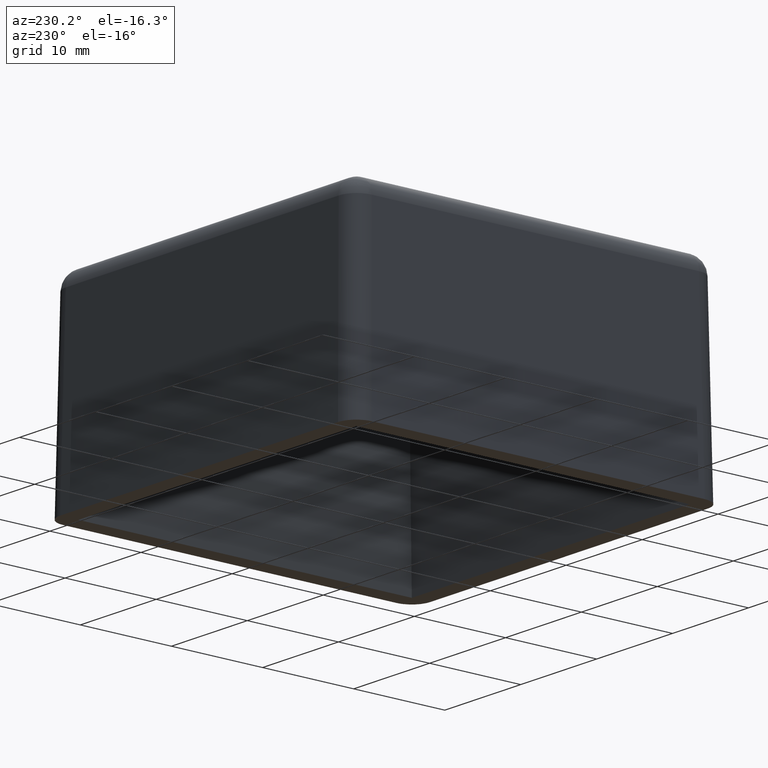
[diagram: clean part render]
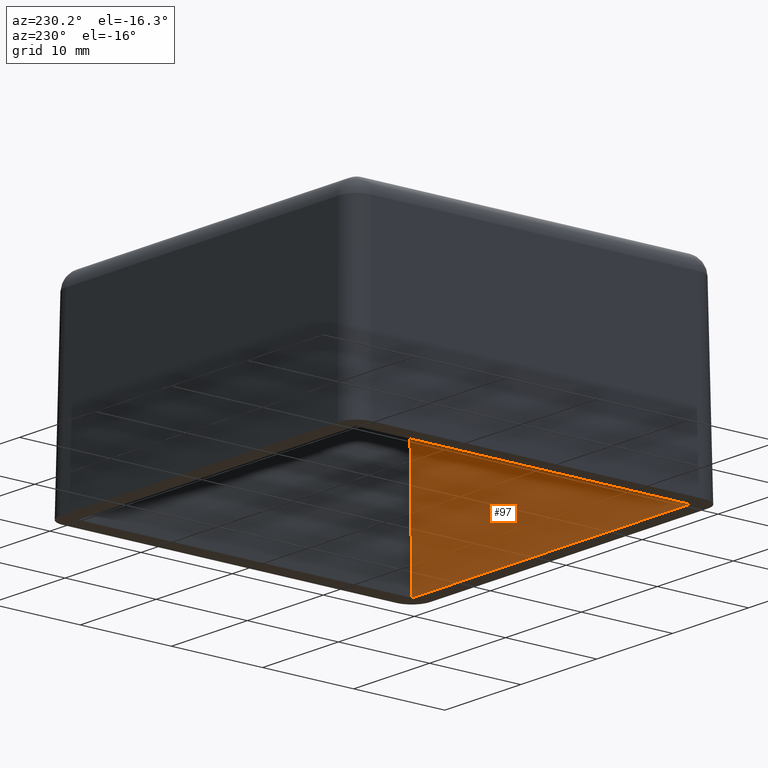
[diagram: same view with one face highlighted and labeled with its STEP entity id]
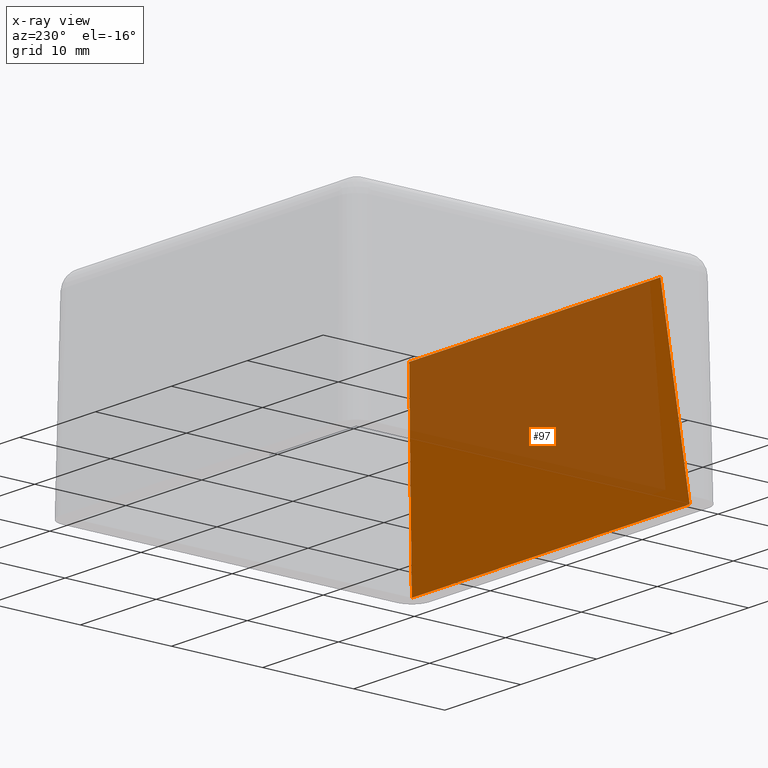
[diagram: x-ray of the same camera — body ghosted, the highlighted face saturated]
A machine part, auxiliary view. The second image highlights one B-rep face of the part: STEP entity #97.
The next image is the same camera in x-ray: the body ghosted, the highlighted face saturated — about 58% of this face is hidden behind the body in this view.
In plain terms, the highlighted planar face has unit normal (0, -0.9962, 0.0872).
Its self-contained STEP definition (entity closure, byte-faithful):
#97 = ADVANCED_FACE( '', ( #215 ), #216, .F. );
#215 = FACE_OUTER_BOUND( '', #400, .T. );
#216 = PLANE( '', #401 );
#400 = EDGE_LOOP( '', ( #769, #770, #771, #772 ) );
#401 = AXIS2_PLACEMENT_3D( '', #773, #774, #775 );
#769 = ORIENTED_EDGE( '', *, *, #1366, .F. );
#770 = ORIENTED_EDGE( '', *, *, #1377, .F. );
#771 = ORIENTED_EDGE( '', *, *, #1374, .T. );
#772 = ORIENTED_EDGE( '', *, *, #1378, .T. );
#773 = CARTESIAN_POINT( '', ( -18.3000000000000, -18.3000000000000, 0.000000000000000 ) );
#774 = DIRECTION( '', ( 0.000000000000000, -0.996194698091746, 0.0871557427476582 ) );
#775 = DIRECTION( '', ( 0.000000000000000, -0.0871557427476582, -0.996194698091746 ) );
#1366 = EDGE_CURVE( '', #1655, #1657, #1658, .F. );
#1374 = EDGE_CURVE( '', #1666, #1670, #1672, .F. );
#1377 = EDGE_CURVE( '', #1666, #1655, #1675, .T. );
#1378 = EDGE_CURVE( '', #1670, #1657, #1676, .T. );
#1655 = VERTEX_POINT( '', #2208 );
#1657 = VERTEX_POINT( '', #2211 );
#1658 = LINE( '', #2212, #2213 );
#1666 = VERTEX_POINT( '', #2223 );
#1670 = VERTEX_POINT( '', #2229 );
#1672 = LINE( '', #2232, #2233 );
#1675 = LINE( '', #2238, #2239 );
#1676 = LINE( '', #2240, #2241 );
#2208 = CARTESIAN_POINT( '', ( -18.3000000000000, -18.3000000000000, 0.000000000000000 ) );
#2211 = CARTESIAN_POINT( '', ( 18.3000000000000, -18.3000000000000, 0.000000000000000 ) );
#2212 = CARTESIAN_POINT( '', ( -18.3000000000000, -18.3000000000000, 0.000000000000000 ) );
#2213 = VECTOR( '', #2599, 1000.00000000000 );
#2223 = CARTESIAN_POINT( '', ( -16.5502267294815, -16.5502267294815, 20.0000000000000 ) );
#2229 = CARTESIAN_POINT( '', ( 16.5502267294815, -16.5502267294815, 20.0000000000000 ) );
#2232 = CARTESIAN_POINT( '', ( -18.3000000000000, -16.5502267294815, 20.0000000000000 ) );
#2233 = VECTOR( '', #2611, 1000.00000000000 );
#2238 = CARTESIAN_POINT( '', ( -18.3000000000000, -18.3000000000000, 0.000000000000000 ) );
#2239 = VECTOR( '', #2614, 1000.00000000000 );
#2240 = CARTESIAN_POINT( '', ( 18.3000000000000, -18.3000000000000, 0.000000000000000 ) );
#2241 = VECTOR( '', #2615, 1000.00000000000 );
#2599 = DIRECTION( '', ( -1.00000000000000, 0.000000000000000, 0.000000000000000 ) );
#2611 = DIRECTION( '', ( -1.00000000000000, 0.000000000000000, 0.000000000000000 ) );
#2614 = DIRECTION( '', ( -0.0868265938642476, -0.0868265938642476, -0.992432509138967 ) );
#2615 = DIRECTION( '', ( 0.0868265938642476, -0.0868265938642476, -0.992432509138967 ) );